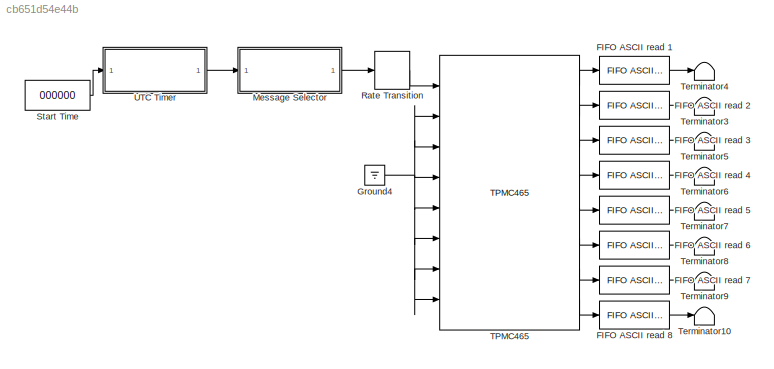
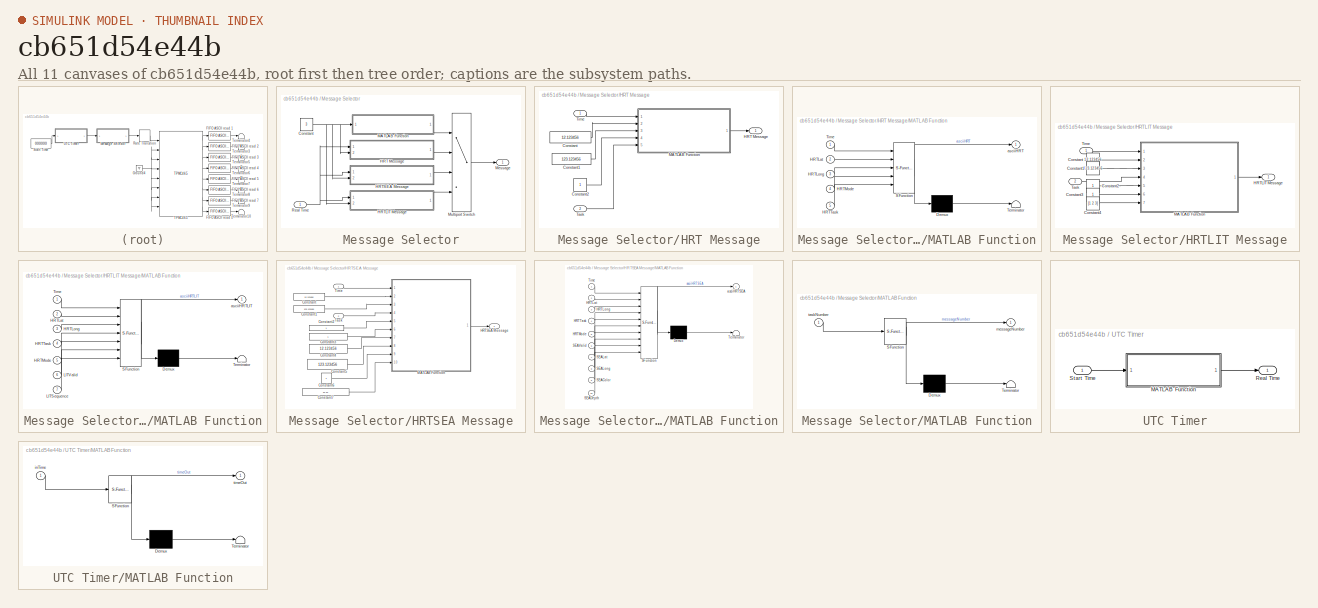
[diagram: thumbnail index - all 11 canvases of the model, root first then tree order]
MODEL slx_cb651d54e44b
KIND model
BLOCK [Reference] FIFO ASCII read 1  REF=xpcseriallib/FIFO ASCII read 
  Ports = [1, 1]
  SourceBlock = xpcseriallib/FIFO ASCII read
  SourceType = Asynchronous FIFO Block: reader
  enable = off
  header = {'Deploy:'}
  hold = Zero output if no new data
  maxsize = 1024
  outputtype = 8 bit uint null terminated
  sampletime = -1
  term = [13 10]
BLOCK [Reference] FIFO ASCII read 2  REF=xpcseriallib/FIFO ASCII read 
  Ports = [1, 1]
  SourceBlock = xpcseriallib/FIFO ASCII read
  SourceType = Asynchronous FIFO Block: reader
  enable = off
  header = {'Deploy:'}
  hold = Zero output if no new data
  maxsize = 1024
  outputtype = 8 bit uint null terminated
  sampletime = -1
  term = [13 10]
BLOCK [Reference] FIFO ASCII read 3  REF=xpcseriallib/FIFO ASCII read 
  Ports = [1, 1]
  SourceBlock = xpcseriallib/FIFO ASCII read
  SourceType = Asynchronous FIFO Block: reader
  enable = off
  header = {'Deploy:'}
  hold = Zero output if no new data
  maxsize = 1024
  outputtype = 8 bit uint null terminated
  sampletime = -1
  term = [13 10]
BLOCK [Reference] FIFO ASCII read 4  REF=xpcseriallib/FIFO ASCII read 
  Ports = [1, 1]
  SourceBlock = xpcseriallib/FIFO ASCII read
  SourceType = Asynchronous FIFO Block: reader
  enable = off
  header = {'Deploy:'}
  hold = Zero output if no new data
  maxsize = 1024
  outputtype = 8 bit uint null terminated
  sampletime = -1
  term = [13 10]
BLOCK [Reference] FIFO ASCII read 5  REF=xpcseriallib/FIFO ASCII read 
  Ports = [1, 1]
  SourceBlock = xpcseriallib/FIFO ASCII read
  SourceType = Asynchronous FIFO Block: reader
  enable = off
  header = {'Deploy:'}
  hold = Zero output if no new data
  maxsize = 1024
  outputtype = 8 bit uint null terminated
  sampletime = -1
  term = [13 10]
BLOCK [Reference] FIFO ASCII read 6  REF=xpcseriallib/FIFO ASCII read 
  Ports = [1, 1]
  SourceBlock = xpcseriallib/FIFO ASCII read
  SourceType = Asynchronous FIFO Block: reader
  enable = off
  header = {'Deploy:'}
  hold = Zero output if no new data
  maxsize = 1024
  outputtype = 8 bit uint null terminated
  sampletime = -1
  term = [13 10]
BLOCK [Reference] FIFO ASCII read 7  REF=xpcseriallib/FIFO ASCII read 
  Ports = [1, 1]
  SourceBlock = xpcseriallib/FIFO ASCII read
  SourceType = Asynchronous FIFO Block: reader
  enable = off
  header = {'Deploy:'}
  hold = Zero output if no new data
  maxsize = 1024
  outputtype = 8 bit uint null terminated
  sampletime = -1
  term = [13 10]
BLOCK [Reference] FIFO ASCII read 8  REF=xpcseriallib/FIFO ASCII read 
  Ports = [1, 1]
  SourceBlock = xpcseriallib/FIFO ASCII read
  SourceType = Asynchronous FIFO Block: reader
  enable = off
  header = {'Deploy:'}
  hold = Zero output if no new data
  maxsize = 1024
  outputtype = 8 bit uint null terminated
  sampletime = -1
  term = [13 10]
BLOCK [Ground] Ground4
BLOCK [SubSystem] Message Selector
  Ports = [1, 1]
  RequestExecContextInheritance = off
BLOCK [Constant] Message Selector/Constant
  Value = 3
BLOCK [SubSystem] Message Selector/HRT Message
  Ports = [2, 1]
  RequestExecContextInheritance = off
BLOCK [Constant] Message Selector/HRT Message/Constant
  Value = 12.123456
BLOCK [Constant] Message Selector/HRT Message/Constant1
  Value = 123.123456
BLOCK [Constant] Message Selector/HRT Message/Constant2
BLOCK [Outport] Message Selector/HRT Message/HRT Message
  IconDisplay = Port number
BLOCK [SubSystem] Message Selector/HRT Message/MATLAB Function
  ErrorFcn = Stateflow.Translate.translate
  PermitHierarchicalResolution = ExplicitOnly
  Ports = [5, 1]
  RequestExecContextInheritance = off
  SFBlockType = MATLAB Function
  TreatAsAtomicUnit = on
BLOCK [Demux] Message Selector/HRT Message/MATLAB Function/ Demux 
  Outputs = 1
  Ports = [1, 1]
BLOCK [S-Function] Message Selector/HRT Message/MATLAB Function/ SFunction 
  EnableBusSupport = on
  FunctionName = sf_sfun
  PortCounts = [5 2]
  Ports = [5, 2]
  Tag = Stateflow S-Function RobotX_CommOnlyJudges 5
BLOCK [Terminator] Message Selector/HRT Message/MATLAB Function/ Terminator 
BLOCK [Inport] Message Selector/HRT Message/MATLAB Function/HRTLat
  IconDisplay = Port number
  Port = 2
BLOCK [Inport] Message Selector/HRT Message/MATLAB Function/HRTLong
  IconDisplay = Port number
  Port = 3
BLOCK [Inport] Message Selector/HRT Message/MATLAB Function/HRTMode
  IconDisplay = Port number
  Port = 4
BLOCK [Inport] Message Selector/HRT Message/MATLAB Function/HRTTask
  IconDisplay = Port number
  Port = 5
BLOCK [Inport] Message Selector/HRT Message/MATLAB Function/Time
  IconDisplay = Port number
BLOCK [Outport] Message Selector/HRT Message/MATLAB Function/asciiHRT
  IconDisplay = Port number
BLOCK [Inport] Message Selector/HRT Message/Task
  IconDisplay = Port number
  Port = 2
BLOCK [Inport] Message Selector/HRT Message/Time
  IconDisplay = Port number
BLOCK [SubSystem] Message Selector/HRTLIT Message
  Ports = [2, 1]
  RequestExecContextInheritance = off
BLOCK [Constant] Message Selector/HRTLIT Message/Constant
  Value = 12.123456
BLOCK [Constant] Message Selector/HRTLIT Message/Constant1
  Value = 123.123456
BLOCK [Constant] Message Selector/HRTLIT Message/Constant2
BLOCK [Constant] Message Selector/HRTLIT Message/Constant3
BLOCK [Constant] Message Selector/HRTLIT Message/Constant4
  Value = [1 2 3]
BLOCK [Outport] Message Selector/HRTLIT Message/HRTLIT Message
  IconDisplay = Port number
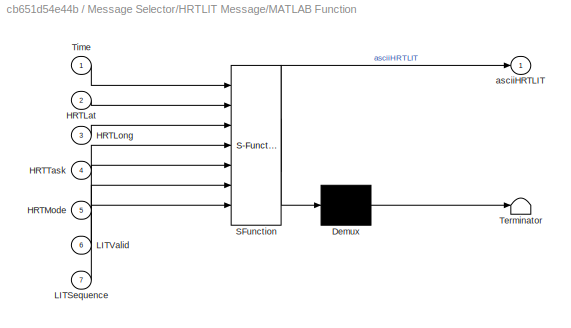
BLOCK [SubSystem] Message Selector/HRTLIT Message/MATLAB Function
  ErrorFcn = Stateflow.Translate.translate
  PermitHierarchicalResolution = ExplicitOnly
  Ports = [7, 1]
  RequestExecContextInheritance = off
  SFBlockType = MATLAB Function
  TreatAsAtomicUnit = on
BLOCK [Demux] Message Selector/HRTLIT Message/MATLAB Function/ Demux 
  Outputs = 1
  Ports = [1, 1]
BLOCK [S-Function] Message Selector/HRTLIT Message/MATLAB Function/ SFunction 
  EnableBusSupport = on
  FunctionName = sf_sfun
  PortCounts = [7 2]
  Ports = [7, 2]
  Tag = Stateflow S-Function RobotX_CommOnlyJudges 6
BLOCK [Terminator] Message Selector/HRTLIT Message/MATLAB Function/ Terminator 
BLOCK [Inport] Message Selector/HRTLIT Message/MATLAB Function/HRTLat
  IconDisplay = Port number
  Port = 2
BLOCK [Inport] Message Selector/HRTLIT Message/MATLAB Function/HRTLong
  IconDisplay = Port number
  Port = 3
BLOCK [Inport] Message Selector/HRTLIT Message/MATLAB Function/HRTMode
  IconDisplay = Port number
  Port = 5
BLOCK [Inport] Message Selector/HRTLIT Message/MATLAB Function/HRTTask
  IconDisplay = Port number
  Port = 4
BLOCK [Inport] Message Selector/HRTLIT Message/MATLAB Function/LITSequence
  IconDisplay = Port number
  Port = 7
BLOCK [Inport] Message Selector/HRTLIT Message/MATLAB Function/LITValid
  IconDisplay = Port number
  Port = 6
BLOCK [Inport] Message Selector/HRTLIT Message/MATLAB Function/Time
  IconDisplay = Port number
BLOCK [Outport] Message Selector/HRTLIT Message/MATLAB Function/asciiHRTLIT
  IconDisplay = Port number
BLOCK [Inport] Message Selector/HRTLIT Message/Task
  IconDisplay = Port number
  Port = 2
BLOCK [Inport] Message Selector/HRTLIT Message/Time
  IconDisplay = Port number
BLOCK [SubSystem] Message Selector/HRTSEA Message
  Ports = [2, 1]
  RequestExecContextInheritance = off
BLOCK [Constant] Message Selector/HRTSEA Message/Constant
  Value = 12.123456
BLOCK [Constant] Message Selector/HRTSEA Message/Constant1
  Value = 123.123456
BLOCK [Constant] Message Selector/HRTSEA Message/Constant2
BLOCK [Constant] Message Selector/HRTSEA Message/Constant3
BLOCK [Constant] Message Selector/HRTSEA Message/Constant4
  Value = 12.123456
BLOCK [Constant] Message Selector/HRTSEA Message/Constant5
  Value = 123.123456
BLOCK [Constant] Message Selector/HRTSEA Message/Constant6
BLOCK [Constant] Message Selector/HRTSEA Message/Constant7
  Value = 12.12
BLOCK [Outport] Message Selector/HRTSEA Message/HRTSEA Message
  IconDisplay = Port number
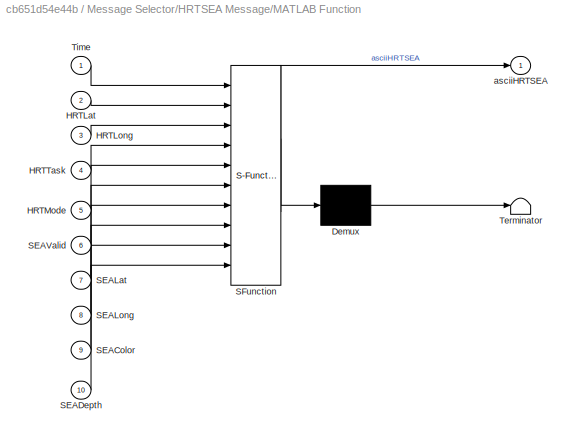
BLOCK [SubSystem] Message Selector/HRTSEA Message/MATLAB Function
  ErrorFcn = Stateflow.Translate.translate
  PermitHierarchicalResolution = ExplicitOnly
  Ports = [10, 1]
  RequestExecContextInheritance = off
  SFBlockType = MATLAB Function
  TreatAsAtomicUnit = on
BLOCK [Demux] Message Selector/HRTSEA Message/MATLAB Function/ Demux 
  Outputs = 1
  Ports = [1, 1]
BLOCK [S-Function] Message Selector/HRTSEA Message/MATLAB Function/ SFunction 
  EnableBusSupport = on
  FunctionName = sf_sfun
  PortCounts = [10 2]
  Ports = [10, 2]
  Tag = Stateflow S-Function RobotX_CommOnlyJudges 18
BLOCK [Terminator] Message Selector/HRTSEA Message/MATLAB Function/ Terminator 
BLOCK [Inport] Message Selector/HRTSEA Message/MATLAB Function/HRTLat
  IconDisplay = Port number
  Port = 2
BLOCK [Inport] Message Selector/HRTSEA Message/MATLAB Function/HRTLong
  IconDisplay = Port number
  Port = 3
BLOCK [Inport] Message Selector/HRTSEA Message/MATLAB Function/HRTMode
  IconDisplay = Port number
  Port = 5
BLOCK [Inport] Message Selector/HRTSEA Message/MATLAB Function/HRTTask
  IconDisplay = Port number
  Port = 4
BLOCK [Inport] Message Selector/HRTSEA Message/MATLAB Function/SEAColor
  IconDisplay = Port number
  Port = 9
BLOCK [Inport] Message Selector/HRTSEA Message/MATLAB Function/SEADepth
  IconDisplay = Port number
  Port = 10
BLOCK [Inport] Message Selector/HRTSEA Message/MATLAB Function/SEALat
  IconDisplay = Port number
  Port = 7
BLOCK [Inport] Message Selector/HRTSEA Message/MATLAB Function/SEALong
  IconDisplay = Port number
  Port = 8
BLOCK [Inport] Message Selector/HRTSEA Message/MATLAB Function/SEAValid
  IconDisplay = Port number
  Port = 6
BLOCK [Inport] Message Selector/HRTSEA Message/MATLAB Function/Time
  IconDisplay = Port number
BLOCK [Outport] Message Selector/HRTSEA Message/MATLAB Function/asciiHRTSEA
  IconDisplay = Port number
BLOCK [Inport] Message Selector/HRTSEA Message/Task
  IconDisplay = Port number
  Port = 2
BLOCK [Inport] Message Selector/HRTSEA Message/Time
  IconDisplay = Port number
BLOCK [SubSystem] Message Selector/MATLAB Function
  ErrorFcn = Stateflow.Translate.translate
  PermitHierarchicalResolution = ExplicitOnly
  Ports = [1, 1]
  RequestExecContextInheritance = off
  SFBlockType = MATLAB Function
  TreatAsAtomicUnit = on
BLOCK [Demux] Message Selector/MATLAB Function/ Demux 
  Outputs = 1
  Ports = [1, 1]
BLOCK [S-Function] Message Selector/MATLAB Function/ SFunction 
  EnableBusSupport = on
  FunctionName = sf_sfun
  PortCounts = [1 2]
  Ports = [1, 2]
  Tag = Stateflow S-Function RobotX_CommOnlyJudges 25
BLOCK [Terminator] Message Selector/MATLAB Function/ Terminator 
BLOCK [Outport] Message Selector/MATLAB Function/messageNumber
  IconDisplay = Port number
BLOCK [Inport] Message Selector/MATLAB Function/taskNumber
  IconDisplay = Port number
BLOCK [Outport] Message Selector/Message
  IconDisplay = Port number
BLOCK [MultiPortSwitch] Message Selector/Multiport Switch
  InputSameDT = off
  Ports = [4, 1]
  SaturateOnIntegerOverflow = off
BLOCK [Inport] Message Selector/Real Time
  IconDisplay = Port number
BLOCK [RateTransition] Rate Transition
  Deterministic = off
  OutPortSampleTime = 1
BLOCK [Constant] Start Time
  Value = 000000
BLOCK [Reference] TPMC465  REF=speedgoatlib/IO504/TPMC465  (lib defined in mdl_2b10c7445f81, mdl_649b3eec89a6, +4 more)
  Ports = [8, 8]
  SourceBlock = speedgoatlib/IO504/TPMC465
  SourceType = sendreceive_IO504
  baud1 = 115200
  baud2 = 115200
  baud3 = 115200
  baud4 = 115200
  baud5 = 115200
  baud6 = 115200
  baud7 = 115200
  baud8 = 115200
  bauddivisor1 = 1
  bauddivisor2 = 1
  bauddivisor3 = 1
  bauddivisor4 = 1
  bauddivisor5 = 1
  bauddivisor6 = 1
  bauddivisor7 = 1
  bauddivisor8 = 1
  group = Basic Setup
  hwmode1 = none
  hwmode2 = none
  hwmode3 = none
  hwmode4 = none
  hwmode5 = none
  hwmode6 = none
  hwmode7 = none
  hwmode8 = none
  irqnum = 9
  ndata1 = 7
  ndata2 = 7
  ndata3 = 7
  ndata4 = 8
  ndata5 = 8
  ndata6 = 8
  ndata7 = 8
  ndata8 = 8
  nstop1 = 1
  nstop2 = 1
  nstop3 = 1
  nstop4 = 1
  nstop5 = 1
  nstop6 = 1
  nstop7 = 1
  nstop8 = 1
  parity1 = Even
  parity2 = Even
  parity3 = Even
  parity4 = None
  parity5 = None
  parity6 = None
  parity7 = None
  parity8 = None
  port = 2
  prescale1 = off
  prescale2 = off
  prescale3 = off
  prescale4 = off
  prescale5 = off
  prescale6 = off
  prescale7 = off
  prescale8 = off
  rcvfifosize1 = 1024
  rcvfifosize2 = 1024
  rcvfifosize3 = 1024
  rcvfifosize4 = 1024
  rcvfifosize5 = 1024
  rcvfifosize6 = 1024
  rcvfifosize7 = 1024
  rcvfifosize8 = 1024
  rlevel1 = half full (32)
  rlevel2 = half full (32)
  rlevel3 = half full (32)
  rlevel4 = half full (32)
  rlevel5 = 1
  rlevel6 = 1
  rlevel7 = 1
  rlevel8 = 1
  rs485auto1 = off
  rs485auto2 = off
  rs485auto3 = off
  rs485auto4 = off
  rs485auto5 = off
  rs485auto6 = off
  rs485auto7 = off
  rs485auto8 = off
  rs485delay1 = 0
  rs485delay2 = 0
  rs485delay3 = 0
  rs485delay4 = 0
  rs485delay5 = 0
  rs485delay6 = 0
  rs485delay7 = 0
  rs485delay8 = 0
  sampling1 = 16x (standard)
  sampling2 = 16x (standard)
  sampling3 = 16x (standard)
  sampling4 = 16x (standard)
  sampling5 = 16x (standard)
  sampling6 = 16x (standard)
  sampling7 = 16x (standard)
  sampling8 = 16x (standard)
  slot = -1
  standard1 = on
  standard2 = on
  standard3 = on
  standard4 = on
  standard5 = on
  standard6 = on
  standard7 = on
  standard8 = on
  swmode1 = none
  swmode2 = none
  swmode3 = none
  swmode4 = none
  swmode5 = none
  swmode6 = none
  swmode7 = none
  swmode8 = none
  transceiver1 = RS232 (max 921.6kb/s)
  transceiver2 = RS232 (max 921.6kb/s)
  transceiver3 = RS232 (max 921.6kb/s)
  transceiver4 = RS232 (max 921.6kb/s)
  transceiver5 = RS232 (max 921.6kb/s)
  transceiver6 = RS232 (max 921.6kb/s)
  transceiver7 = RS232 (max 921.6kb/s)
  transceiver8 = RS232 (max 921.6kb/s)
  xmtdatatype1 = 8 bit uint null terminated
  xmtdatatype2 = 8 bit uint null terminated
  xmtdatatype3 = 8 bit uint null terminated
  xmtdatatype4 = 8 bit uint null terminated
  xmtdatatype5 = 8 bit uint null terminated
  xmtdatatype6 = 8 bit uint null terminated
  xmtdatatype7 = 8 bit uint null terminated
  xmtdatatype8 = 8 bit uint null terminated
  xmtfifosize1 = 1024
  xmtfifosize2 = 1024
  xmtfifosize3 = 1024
  xmtfifosize4 = 1024
  xmtfifosize5 = 1024
  xmtfifosize6 = 1024
  xmtfifosize7 = 1024
  xmtfifosize8 = 1024
  xoffchar1 = 19
  xoffchar2 = 19
  xoffchar3 = 19
  xoffchar4 = 19
  xoffchar5 = 19
  xoffchar6 = 19
  xoffchar7 = 19
  xoffchar8 = 19
  xonchar1 = 17
  xonchar2 = 17
  xonchar3 = 17
  xonchar4 = 17
  xonchar5 = 17
  xonchar6 = 17
  xonchar7 = 17
  xonchar8 = 17
BLOCK [Terminator] Terminator10
BLOCK [Terminator] Terminator3
BLOCK [Terminator] Terminator4
BLOCK [Terminator] Terminator5
BLOCK [Terminator] Terminator6
BLOCK [Terminator] Terminator7
BLOCK [Terminator] Terminator8
BLOCK [Terminator] Terminator9
BLOCK [SubSystem] UTC Timer
  Ports = [1, 1]
  RequestExecContextInheritance = off
BLOCK [SubSystem] UTC Timer/MATLAB Function
  ErrorFcn = Stateflow.Translate.translate
  PermitHierarchicalResolution = ExplicitOnly
  Ports = [1, 1]
  RequestExecContextInheritance = off
  SFBlockType = MATLAB Function
  TreatAsAtomicUnit = on
BLOCK [Demux] UTC Timer/MATLAB Function/ Demux 
  Outputs = 1
  Ports = [1, 1]
BLOCK [S-Function] UTC Timer/MATLAB Function/ SFunction 
  EnableBusSupport = on
  FunctionName = sf_sfun
  PortCounts = [1 2]
  Ports = [1, 2]
  Tag = Stateflow S-Function RobotX_CommOnlyJudges 35
BLOCK [Terminator] UTC Timer/MATLAB Function/ Terminator 
BLOCK [Inport] UTC Timer/MATLAB Function/inTime
  IconDisplay = Port number
BLOCK [Outport] UTC Timer/MATLAB Function/timeOut
  IconDisplay = Port number
BLOCK [Outport] UTC Timer/Real Time
  IconDisplay = Port number
BLOCK [Inport] UTC Timer/Start Time
  IconDisplay = Port number
LINE FIFO ASCII read 1:1 -> Terminator4:1
LINE FIFO ASCII read 2:1 -> Terminator3:1
LINE FIFO ASCII read 3:1 -> Terminator5:1
LINE FIFO ASCII read 4:1 -> Terminator6:1
LINE FIFO ASCII read 5:1 -> Terminator7:1
LINE FIFO ASCII read 6:1 -> Terminator8:1
LINE FIFO ASCII read 7:1 -> Terminator9:1
LINE FIFO ASCII read 8:1 -> Terminator10:1
NET Ground4:1 -> TPMC465:2, TPMC465:3, TPMC465:4, TPMC465:5, TPMC465:6, TPMC465:7, TPMC465:8
NET Message Selector/Constant:1 -> Message Selector/HRT Message:2, Message Selector/HRTLIT Message:2, Message Selector/HRTSEA Message:2, Message Selector/MATLAB Function:1
LINE Message Selector/HRT Message/Constant1:1 -> Message Selector/HRT Message/MATLAB Function:3
LINE Message Selector/HRT Message/Constant2:1 -> Message Selector/HRT Message/MATLAB Function:4
LINE Message Selector/HRT Message/Constant:1 -> Message Selector/HRT Message/MATLAB Function:2
LINE Message Selector/HRT Message/MATLAB Function:1 -> Message Selector/HRT Message/HRT Message:1
LINE Message Selector/HRT Message/Task:1 -> Message Selector/HRT Message/MATLAB Function:5
LINE Message Selector/HRT Message/Time:1 -> Message Selector/HRT Message/MATLAB Function:1
LINE Message Selector/HRT Message:1 -> Message Selector/Multiport Switch:2
LINE Message Selector/HRTLIT Message/Constant1:1 -> Message Selector/HRTLIT Message/MATLAB Function:3
LINE Message Selector/HRTLIT Message/Constant2:1 -> Message Selector/HRTLIT Message/MATLAB Function:5
LINE Message Selector/HRTLIT Message/Constant3:1 -> Message Selector/HRTLIT Message/MATLAB Function:6
LINE Message Selector/HRTLIT Message/Constant4:1 -> Message Selector/HRTLIT Message/MATLAB Function:7
LINE Message Selector/HRTLIT Message/Constant:1 -> Message Selector/HRTLIT Message/MATLAB Function:2
LINE Message Selector/HRTLIT Message/MATLAB Function:1 -> Message Selector/HRTLIT Message/HRTLIT Message:1
LINE Message Selector/HRTLIT Message/Task:1 -> Message Selector/HRTLIT Message/MATLAB Function:4
LINE Message Selector/HRTLIT Message/Time:1 -> Message Selector/HRTLIT Message/MATLAB Function:1
LINE Message Selector/HRTLIT Message:1 -> Message Selector/Multiport Switch:4
LINE Message Selector/HRTSEA Message/Constant1:1 -> Message Selector/HRTSEA Message/MATLAB Function:3
LINE Message Selector/HRTSEA Message/Constant2:1 -> Message Selector/HRTSEA Message/MATLAB Function:5
LINE Message Selector/HRTSEA Message/Constant3:1 -> Message Selector/HRTSEA Message/MATLAB Function:6
LINE Message Selector/HRTSEA Message/Constant4:1 -> Message Selector/HRTSEA Message/MATLAB Function:7
LINE Message Selector/HRTSEA Message/Constant5:1 -> Message Selector/HRTSEA Message/MATLAB Function:8
LINE Message Selector/HRTSEA Message/Constant6:1 -> Message Selector/HRTSEA Message/MATLAB Function:9
LINE Message Selector/HRTSEA Message/Constant7:1 -> Message Selector/HRTSEA Message/MATLAB Function:10
LINE Message Selector/HRTSEA Message/Constant:1 -> Message Selector/HRTSEA Message/MATLAB Function:2
LINE Message Selector/HRTSEA Message/MATLAB Function:1 -> Message Selector/HRTSEA Message/HRTSEA Message:1
LINE Message Selector/HRTSEA Message/Task:1 -> Message Selector/HRTSEA Message/MATLAB Function:4
LINE Message Selector/HRTSEA Message/Time:1 -> Message Selector/HRTSEA Message/MATLAB Function:1
LINE Message Selector/HRTSEA Message:1 -> Message Selector/Multiport Switch:3
LINE Message Selector/MATLAB Function:1 -> Message Selector/Multiport Switch:1
LINE Message Selector/Multiport Switch:1 -> Message Selector/Message:1
NET Message Selector/Real Time:1 -> Message Selector/HRT Message:1, Message Selector/HRTLIT Message:1, Message Selector/HRTSEA Message:1
LINE Message Selector:1 -> Rate Transition:1
LINE Rate Transition:1 -> TPMC465:1
LINE Start Time:1 -> UTC Timer:1
LINE TPMC465:1 -> FIFO ASCII read 1:1
LINE TPMC465:2 -> FIFO ASCII read 2:1
LINE TPMC465:3 -> FIFO ASCII read 3:1
LINE TPMC465:4 -> FIFO ASCII read 4:1
LINE TPMC465:5 -> FIFO ASCII read 5:1
LINE TPMC465:6 -> FIFO ASCII read 6:1
LINE TPMC465:7 -> FIFO ASCII read 7:1
LINE TPMC465:8 -> FIFO ASCII read 8:1
LINE UTC Timer/MATLAB Function:1 -> UTC Timer/Real Time:1
LINE UTC Timer/Start Time:1 -> UTC Timer/MATLAB Function:1
LINE UTC Timer:1 -> Message Selector:1
note: NET lines group one-source signal fan-out (src -> all destinations, sorted); 1:1 wires keep LINE
